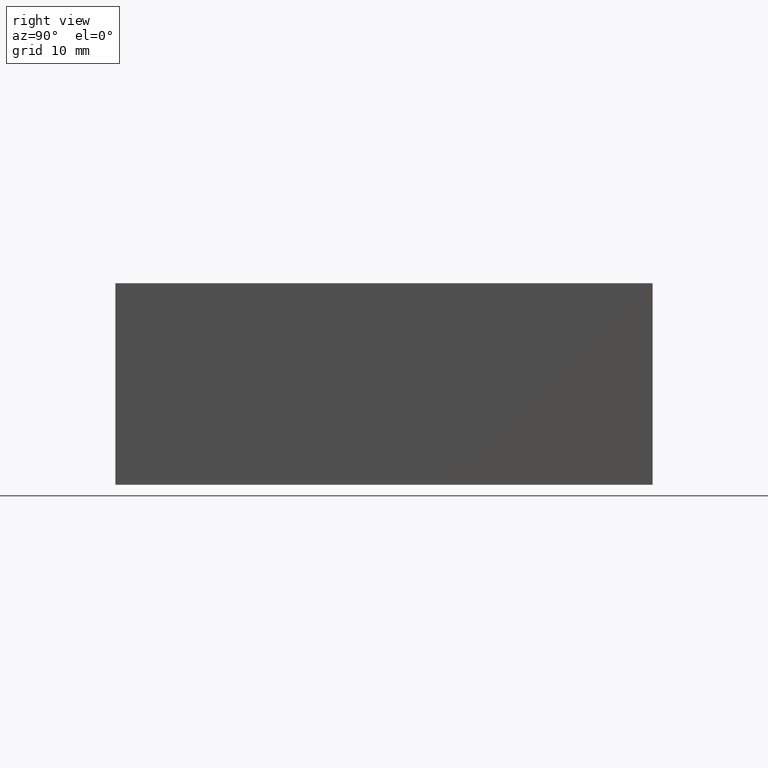
[diagram: clean part render]
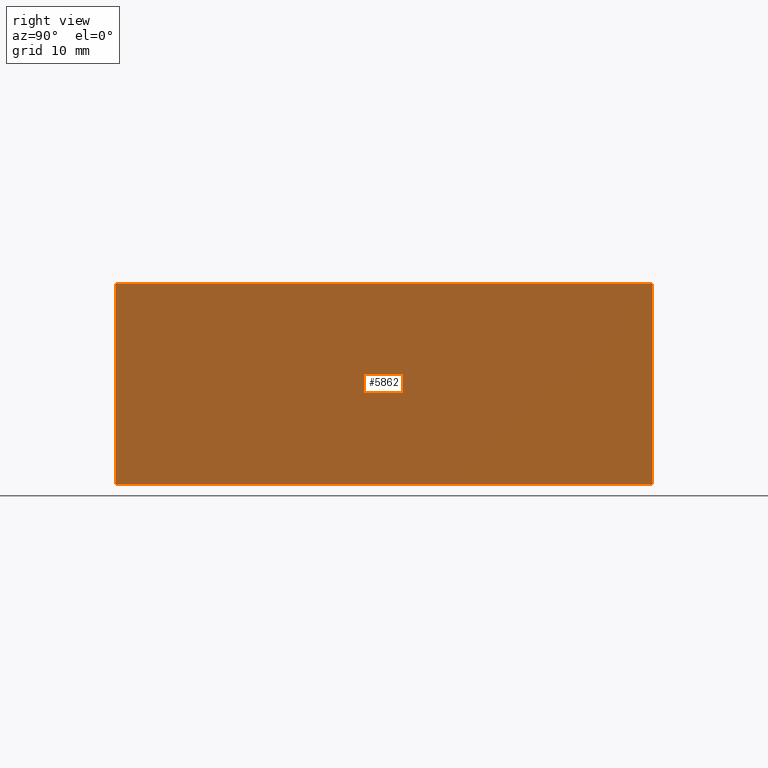
[diagram: same view with one face highlighted and labeled with its STEP entity id]
A machine part, right view. The second image highlights one B-rep face of the part: STEP entity #5862.
In plain terms, the highlighted planar face has unit normal (1, 0, 0).
Its self-contained STEP definition (entity closure, byte-faithful):
#487=FACE_OUTER_BOUND('',#830,.T.);
#830=EDGE_LOOP('',(#5342,#5343,#5344,#5345));
#1421=LINE('',#10186,#2057);
#1448=LINE('',#10265,#2084);
#1458=LINE('',#10317,#2094);
#1467=LINE('',#10349,#2103);
#2057=VECTOR('',#7105,0.75);
#2084=VECTOR('',#7184,2.);
#2094=VECTOR('',#7238,2.);
#2103=VECTOR('',#7279,0.75);
#2778=VERTEX_POINT('',#10179);
#2781=VERTEX_POINT('',#10184);
#2807=VERTEX_POINT('',#10263);
#2827=VERTEX_POINT('',#10316);
#3594=EDGE_CURVE('',#2781,#2778,#1421,.T.);
#3631=EDGE_CURVE('',#2781,#2807,#1448,.T.);
#3657=EDGE_CURVE('',#2827,#2778,#1458,.T.);
#3672=EDGE_CURVE('',#2807,#2827,#1467,.T.);
#5342=ORIENTED_EDGE('',*,*,#3657,.T.);
#5343=ORIENTED_EDGE('',*,*,#3594,.F.);
#5344=ORIENTED_EDGE('',*,*,#3631,.T.);
#5345=ORIENTED_EDGE('',*,*,#3672,.T.);
#5555=PLANE('',#6136);
#5862=ADVANCED_FACE('',(#487),#5555,.T.);
#6136=AXIS2_PLACEMENT_3D('',#10350,#7280,#7281);
#7105=DIRECTION('',(0.,0.,1.));
#7184=DIRECTION('',(0.,1.,0.));
#7238=DIRECTION('',(0.,-1.,0.));
#7279=DIRECTION('',(0.,0.,1.));
#7280=DIRECTION('center_axis',(1.,0.,0.));
#7281=DIRECTION('ref_axis',(0.,0.,-1.));
#10179=CARTESIAN_POINT('',(1.688,0.,0.75));
#10184=CARTESIAN_POINT('',(1.688,0.,0.));
#10186=CARTESIAN_POINT('',(1.688,0.,0.));
#10263=CARTESIAN_POINT('',(1.688,2.,0.));
#10265=CARTESIAN_POINT('',(1.688,0.,0.));
#10316=CARTESIAN_POINT('',(1.688,2.,0.75));
#10317=CARTESIAN_POINT('',(1.688,2.,0.75));
#10349=CARTESIAN_POINT('',(1.688,2.,0.));
#10350=CARTESIAN_POINT('Origin',(1.688,2.,0.));